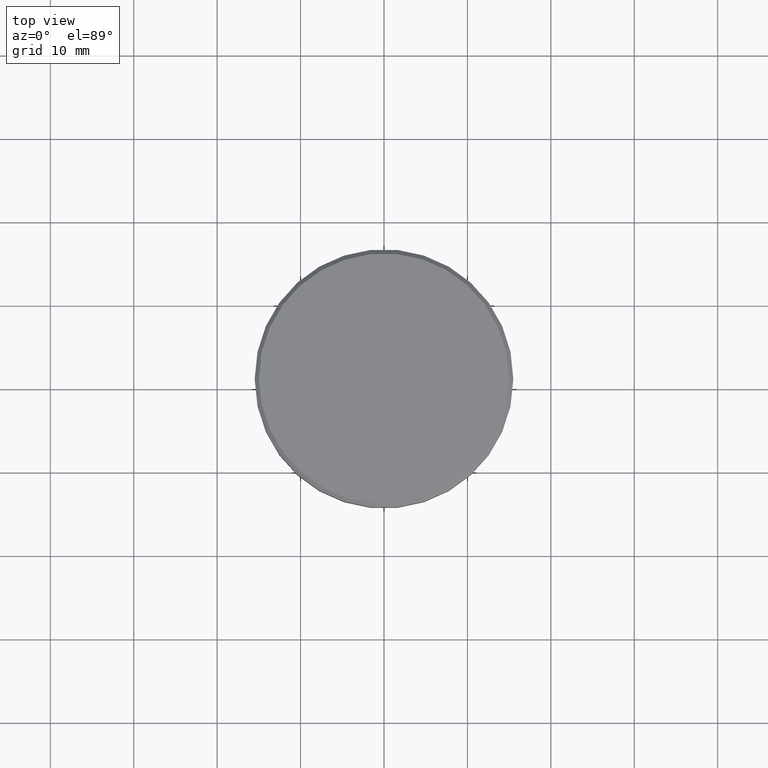
[diagram: clean part render]
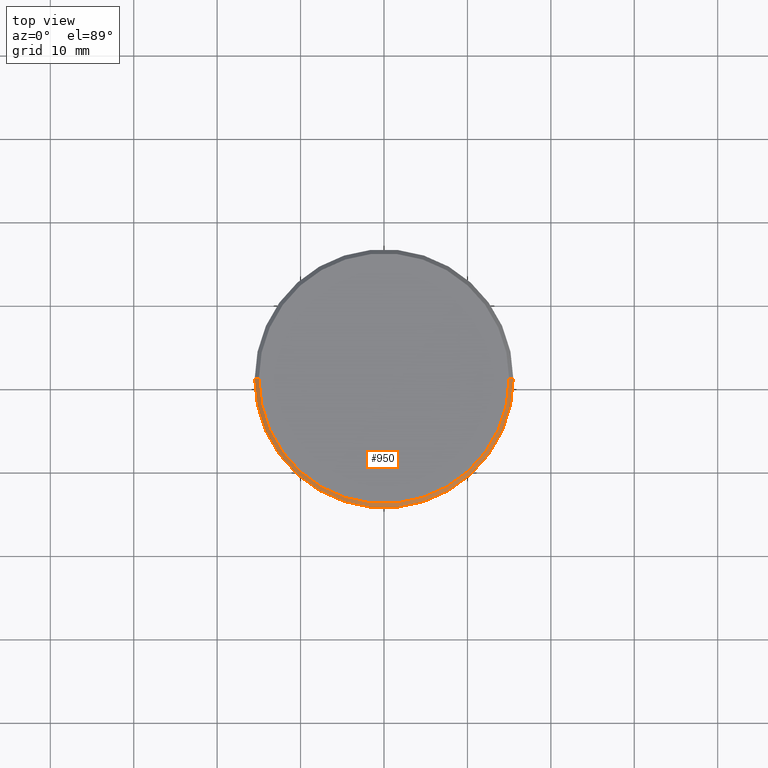
[diagram: same view with one face highlighted and labeled with its STEP entity id]
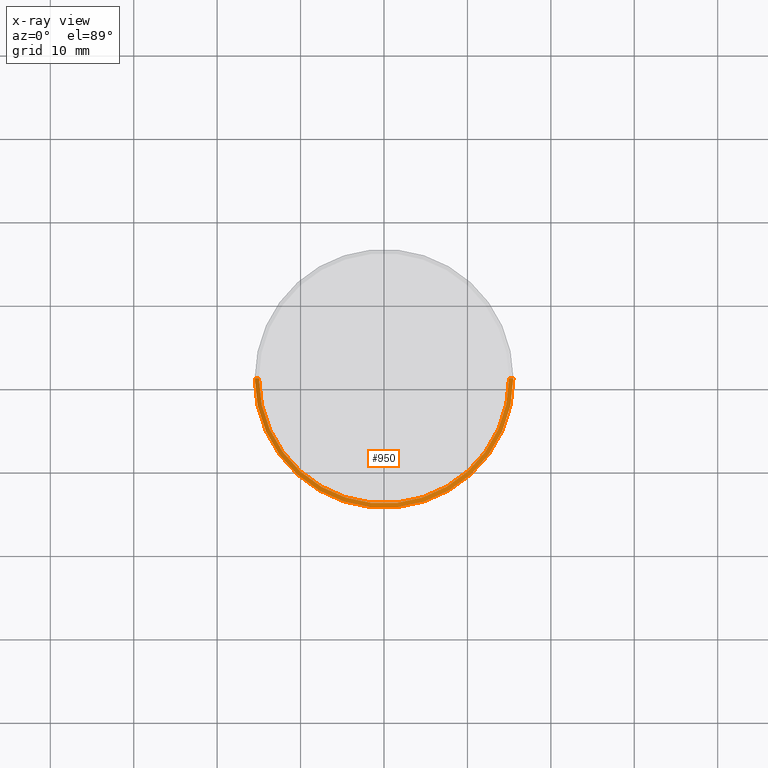
[diagram: x-ray of the same camera — body ghosted, the highlighted face saturated]
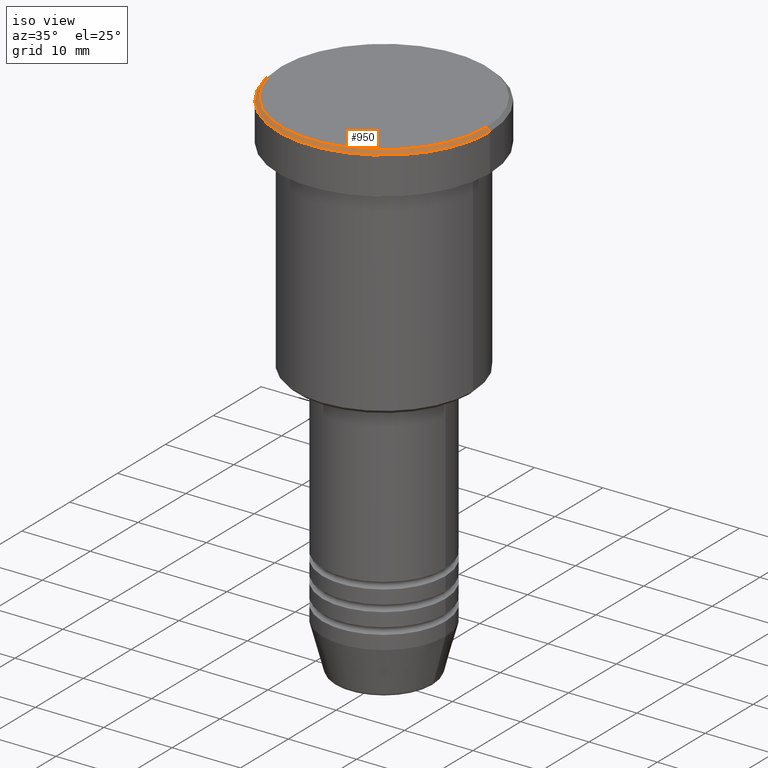
[diagram: same view with one face highlighted and labeled with its STEP entity id]
A machine part, top view. The second image highlights one B-rep face of the part: STEP entity #950.
The next image is the same camera in x-ray: the body ghosted, the highlighted face saturated — about 0% of this face is hidden behind the body in this view.
A second angle (iso view) of the same face is appended — the face is thin or edge-on in the first view.
In plain terms, the highlighted conical surface has half-angle 45 deg.
Its self-contained STEP definition (entity closure, byte-faithful):
#18 = CARTESIAN_POINT ( 'NONE',  ( 0.000000000000000000, 0.000000000000000000, 0.000000000000000000 ) ) ;
#30 = DIRECTION ( 'NONE',  ( 0.7071067811865389130, 8.659560562354828088E-17, -0.7071067811865561215 ) ) ;
#48 = VERTEX_POINT ( 'NONE', #1085 ) ;
#108 = VERTEX_POINT ( 'NONE', #396 ) ;
#119 = DIRECTION ( 'NONE',  ( -0.000000000000000000, -0.000000000000000000, 1.000000000000000000 ) ) ;
#144 = ORIENTED_EDGE ( 'NONE', *, *, #815, .T. ) ;
#206 = CIRCLE ( 'NONE', #403, 15.00000000000001421 ) ;
#228 = AXIS2_PLACEMENT_3D ( 'NONE', #582, #762, #935 ) ;
#230 = ORIENTED_EDGE ( 'NONE', *, *, #1106, .F. ) ;
#247 = CARTESIAN_POINT ( 'NONE',  ( -15.00000000000001421, 0.000000000000000000, 0.000000000000000000 ) ) ;
#269 = CIRCLE ( 'NONE', #595, 15.50000000000000000 ) ;
#320 = ORIENTED_EDGE ( 'NONE', *, *, #579, .F. ) ;
#396 = CARTESIAN_POINT ( 'NONE',  ( -15.50000000000000000, 1.898202538678397557E-15, -0.4999999999999987232 ) ) ;
#403 = AXIS2_PLACEMENT_3D ( 'NONE', #18, #119, #492 ) ;
#410 = CARTESIAN_POINT ( 'NONE',  ( 0.000000000000000000, 0.000000000000000000, -0.4999999999999987232 ) ) ;
#492 = DIRECTION ( 'NONE',  ( 1.000000000000000000, 0.000000000000000000, 0.000000000000000000 ) ) ;
#506 = ORIENTED_EDGE ( 'NONE', *, *, #718, .F. ) ;
#511 = VERTEX_POINT ( 'NONE', #681 ) ;
#537 = VECTOR ( 'NONE', #30, 1000.000000000000000 ) ;
#579 = EDGE_CURVE ( 'NONE', #48, #701, #206, .T. ) ;
#582 = CARTESIAN_POINT ( 'NONE',  ( 0.000000000000000000, 0.000000000000000000, 0.000000000000000000 ) ) ;
#595 = AXIS2_PLACEMENT_3D ( 'NONE', #410, #776, #699 ) ;
#601 = CARTESIAN_POINT ( 'NONE',  ( 15.00000000000001421, 1.867586368699714559E-15, 0.000000000000000000 ) ) ;
#605 = CARTESIAN_POINT ( 'NONE',  ( 15.00000000000001421, 1.836970198721031561E-15, 0.000000000000000000 ) ) ;
#624 = EDGE_LOOP ( 'NONE', ( #506, #320, #144, #230 ) ) ;
#681 = CARTESIAN_POINT ( 'NONE',  ( 15.50000000000000000, 0.000000000000000000, -0.4999999999999987232 ) ) ;
#699 = DIRECTION ( 'NONE',  ( 1.000000000000000000, 0.000000000000000000, 0.000000000000000000 ) ) ;
#701 = VERTEX_POINT ( 'NONE', #601 ) ;
#718 = EDGE_CURVE ( 'NONE', #701, #511, #970, .T. ) ;
#754 = VECTOR ( 'NONE', #974, 1000.000000000000000 ) ;
#762 = DIRECTION ( 'NONE',  ( 0.000000000000000000, 0.000000000000000000, -1.000000000000000000 ) ) ;
#776 = DIRECTION ( 'NONE',  ( 0.000000000000000000, 0.000000000000000000, -1.000000000000000000 ) ) ;
#815 = EDGE_CURVE ( 'NONE', #48, #108, #1058, .T. ) ;
#935 = DIRECTION ( 'NONE',  ( -1.000000000000000000, 0.000000000000000000, 0.000000000000000000 ) ) ;
#950 = ADVANCED_FACE ( 'NONE', ( #1012 ), #1057, .T. ) ;
#970 = LINE ( 'NONE', #605, #537 ) ;
#974 = DIRECTION ( 'NONE',  ( -0.7071067811865389130, 0.000000000000000000, -0.7071067811865561215 ) ) ;
#1012 = FACE_OUTER_BOUND ( 'NONE', #624, .T. ) ;
#1057 = CONICAL_SURFACE ( 'NONE', #228, 15.00000000000001421, 0.7853981633974361776 ) ;
#1058 = LINE ( 'NONE', #247, #754 ) ;
#1085 = CARTESIAN_POINT ( 'NONE',  ( -15.00000000000001421, 0.000000000000000000, 0.000000000000000000 ) ) ;
#1106 = EDGE_CURVE ( 'NONE', #511, #108, #269, .T. ) ;